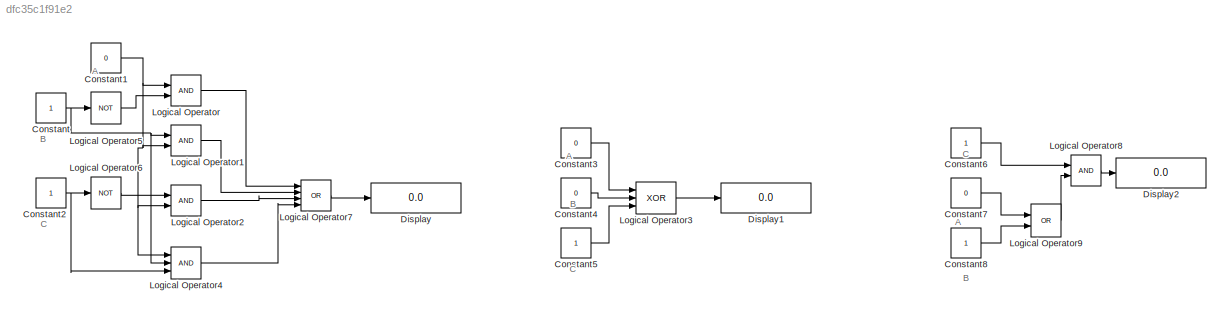
MODEL slx_dfc35c1f91e2
KIND model
CONFIG AbsTol = auto
CONFIG EnableMultiTasking = off
CONFIG FixedStep = auto
CONFIG MaxStep = auto
CONFIG MinStep = auto
CONFIG RelTol = 1e-3
CONFIG SampleTimeConstraint = Unconstrained
CONFIG SolverName = VariableStepAuto
CONFIG StartTime = 0.0
CONFIG StopTime = 10.0
BLOCK [Constant] Constant
BLOCK [Constant] Constant1
  Value = 0
BLOCK [Constant] Constant2
BLOCK [Constant] Constant3
  Value = 0
BLOCK [Constant] Constant4
  Value = 0
BLOCK [Constant] Constant5
BLOCK [Constant] Constant6
BLOCK [Constant] Constant7
  Value = 0
BLOCK [Constant] Constant8
BLOCK [Display] Display
  Decimation = 1
  Ports = [1]
BLOCK [Display] Display1
  Decimation = 1
  Ports = [1]
BLOCK [Display] Display2
  Decimation = 1
  Ports = [1]
BLOCK [Logic] Logical Operator
  AllPortsSameDT = off
  OutDataTypeStr = boolean
  Ports = [2, 1]
BLOCK [Logic] Logical Operator1
  AllPortsSameDT = off
  OutDataTypeStr = boolean
  Ports = [2, 1]
BLOCK [Logic] Logical Operator2
  AllPortsSameDT = off
  OutDataTypeStr = boolean
  Ports = [2, 1]
BLOCK [Logic] Logical Operator3
  AllPortsSameDT = off
  Inputs = 3
  Operator = XOR
  OutDataTypeStr = boolean
  Ports = [3, 1]
BLOCK [Logic] Logical Operator4
  AllPortsSameDT = off
  Inputs = 3
  OutDataTypeStr = boolean
  Ports = [3, 1]
BLOCK [Logic] Logical Operator5
  AllPortsSameDT = off
  Operator = NOT
  OutDataTypeStr = boolean
  Ports = [1, 1]
BLOCK [Logic] Logical Operator6
  AllPortsSameDT = off
  Operator = NOT
  OutDataTypeStr = boolean
  Ports = [1, 1]
BLOCK [Logic] Logical Operator7
  AllPortsSameDT = off
  Inputs = 4
  Operator = OR
  OutDataTypeStr = boolean
  Ports = [4, 1]
BLOCK [Logic] Logical Operator8
  AllPortsSameDT = off
  OutDataTypeStr = boolean
  Ports = [2, 1]
BLOCK [Logic] Logical Operator9
  AllPortsSameDT = off
  Operator = OR
  OutDataTypeStr = boolean
  Ports = [2, 1]
ANNOTATION (root): A
ANNOTATION (root): B
ANNOTATION (root): C
NET Constant1:1 -> Logical Operator1:2, Logical Operator2:2, Logical Operator4:1, Logical Operator:1
NET Constant2:1 -> Logical Operator4:3, Logical Operator6:1
LINE Constant3:1 -> Logical Operator3:1
LINE Constant4:1 -> Logical Operator3:2
LINE Constant5:1 -> Logical Operator3:3
LINE Constant6:1 -> Logical Operator8:1
LINE Constant7:1 -> Logical Operator9:1
LINE Constant8:1 -> Logical Operator9:2
NET Constant:1 -> Logical Operator1:1, Logical Operator4:2, Logical Operator5:1
LINE Logical Operator1:1 -> Logical Operator7:2
LINE Logical Operator2:1 -> Logical Operator7:3
LINE Logical Operator3:1 -> Display1:1
LINE Logical Operator4:1 -> Logical Operator7:4
LINE Logical Operator5:1 -> Logical Operator:2
LINE Logical Operator6:1 -> Logical Operator2:1
LINE Logical Operator7:1 -> Display:1
LINE Logical Operator8:1 -> Display2:1
LINE Logical Operator9:1 -> Logical Operator8:2
LINE Logical Operator:1 -> Logical Operator7:1
note: NET lines group one-source signal fan-out (src -> all destinations, sorted); 1:1 wires keep LINE
